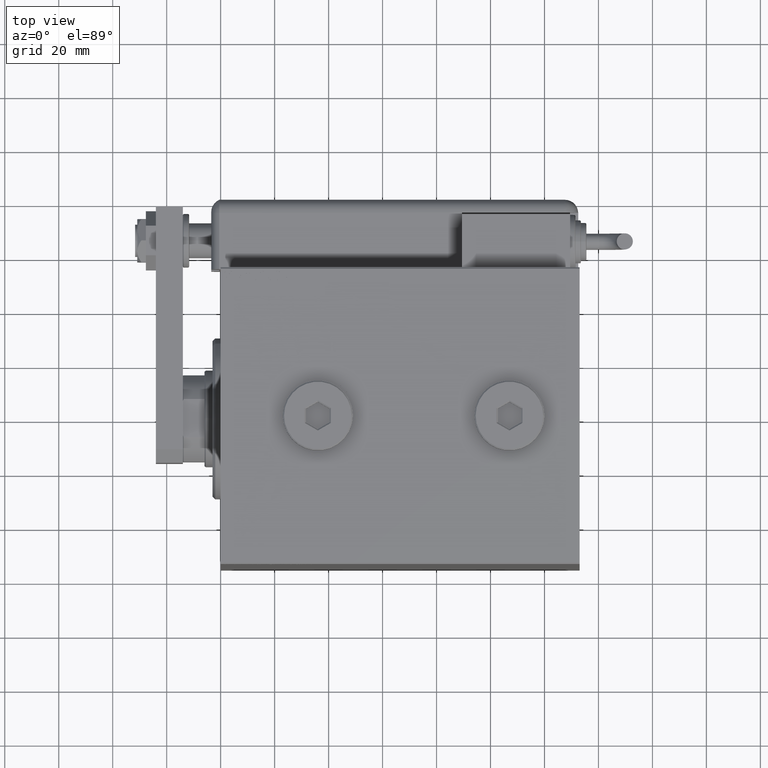
[diagram: clean part render]
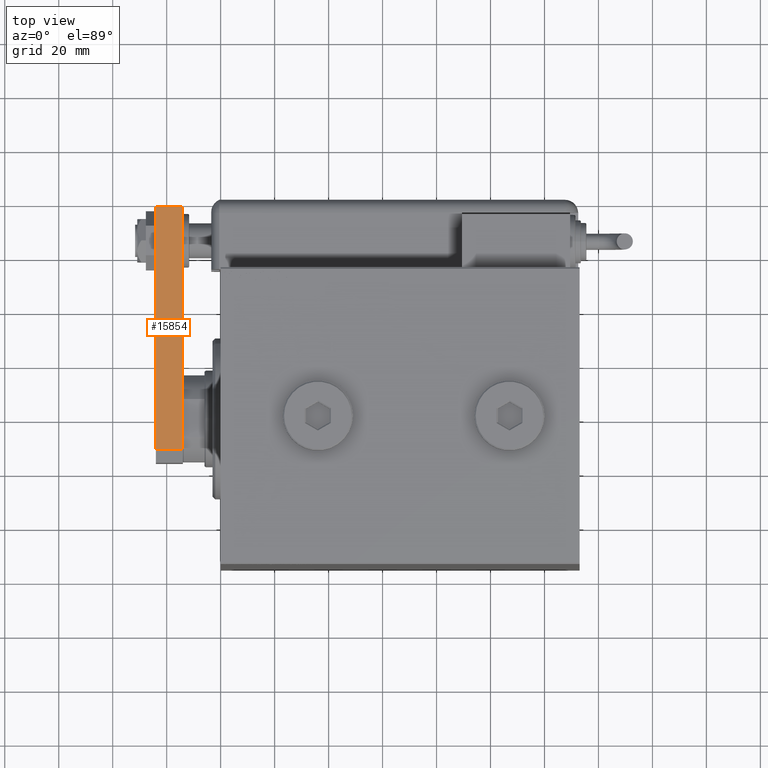
[diagram: same view with one face highlighted and labeled with its STEP entity id]
A machine part, top view. The second image highlights one B-rep face of the part: STEP entity #15854.
In plain terms, the highlighted planar face has unit normal (-0, -0, -1).
Its self-contained STEP definition (entity closure, byte-faithful):
#485 = CARTESIAN_POINT ( 'NONE',  ( -17.50000000000001066, 5.000000000000018652, 10.00000000000000000 ) ) ;
#3771 = CARTESIAN_POINT ( 'NONE',  ( -17.50000000000000355, 95.00000000000000000, 0.000000000000000000 ) ) ;
#4230 = VECTOR ( 'NONE', #17485, 1000.000000000000000 ) ;
#4267 = DIRECTION ( 'NONE',  ( -7.304098846218135653E-17, -1.000000000000000000, 0.000000000000000000 ) ) ;
#6036 = EDGE_CURVE ( 'NONE', #10847, #51741, #12919, .T. ) ;
#6275 = AXIS2_PLACEMENT_3D ( 'NONE', #14612, #43062, #28240 ) ;
#10697 = EDGE_CURVE ( 'NONE', #28684, #51741, #23294, .T. ) ;
#10847 = VERTEX_POINT ( 'NONE', #31597 ) ;
#12919 = LINE ( 'NONE', #60201, #33625 ) ;
#14021 = CARTESIAN_POINT ( 'NONE',  ( -17.50000000000001066, 5.000000000000018652, 10.00000000000000000 ) ) ;
#14612 = CARTESIAN_POINT ( 'NONE',  ( -17.50000000000000355, 95.00000000000000000, 10.00000000000000000 ) ) ;
#15854 = ADVANCED_FACE ( 'NONE', ( #18947 ), #38122, .F. ) ;
#16497 = VECTOR ( 'NONE', #57298, 1000.000000000000000 ) ;
#17485 = DIRECTION ( 'NONE',  ( -0.000000000000000000, -0.000000000000000000, -1.000000000000000000 ) ) ;
#18947 = FACE_OUTER_BOUND ( 'NONE', #30551, .T. ) ;
#19278 = LINE ( 'NONE', #23315, #16497 ) ;
#20062 = CARTESIAN_POINT ( 'NONE',  ( -17.50000000000000355, 95.00000000000000000, 10.00000000000000000 ) ) ;
#20664 = LINE ( 'NONE', #20062, #4230 ) ;
#21377 = EDGE_CURVE ( 'NONE', #10847, #32520, #20664, .T. ) ;
#23294 = LINE ( 'NONE', #14021, #41592 ) ;
#23315 = CARTESIAN_POINT ( 'NONE',  ( -17.50000000000000355, 95.00000000000000000, 0.000000000000000000 ) ) ;
#26591 = ORIENTED_EDGE ( 'NONE', *, *, #10697, .T. ) ;
#28240 = DIRECTION ( 'NONE',  ( 7.304098846218135653E-17, 1.000000000000000000, 0.000000000000000000 ) ) ;
#28684 = VERTEX_POINT ( 'NONE', #47447 ) ;
#30551 = EDGE_LOOP ( 'NONE', ( #34458, #26591, #50573, #59321 ) ) ;
#31597 = CARTESIAN_POINT ( 'NONE',  ( -17.50000000000000355, 95.00000000000000000, 10.00000000000000000 ) ) ;
#32520 = VERTEX_POINT ( 'NONE', #3771 ) ;
#33625 = VECTOR ( 'NONE', #4267, 1000.000000000000000 ) ;
#34458 = ORIENTED_EDGE ( 'NONE', *, *, #40498, .T. ) ;
#38122 = PLANE ( 'NONE',  #6275 ) ;
#40498 = EDGE_CURVE ( 'NONE', #32520, #28684, #19278, .T. ) ;
#41592 = VECTOR ( 'NONE', #47406, 1000.000000000000000 ) ;
#43062 = DIRECTION ( 'NONE',  ( 1.000000000000000000, -7.304098846218135653E-17, 0.000000000000000000 ) ) ;
#47406 = DIRECTION ( 'NONE',  ( 0.000000000000000000, 0.000000000000000000, 1.000000000000000000 ) ) ;
#47447 = CARTESIAN_POINT ( 'NONE',  ( -17.50000000000001066, 5.000000000000018652, 0.000000000000000000 ) ) ;
#50573 = ORIENTED_EDGE ( 'NONE', *, *, #6036, .F. ) ;
#51741 = VERTEX_POINT ( 'NONE', #485 ) ;
#57298 = DIRECTION ( 'NONE',  ( -7.304098846218135653E-17, -1.000000000000000000, 0.000000000000000000 ) ) ;
#59321 = ORIENTED_EDGE ( 'NONE', *, *, #21377, .T. ) ;
#60201 = CARTESIAN_POINT ( 'NONE',  ( -17.50000000000000355, 95.00000000000000000, 10.00000000000000000 ) ) ;